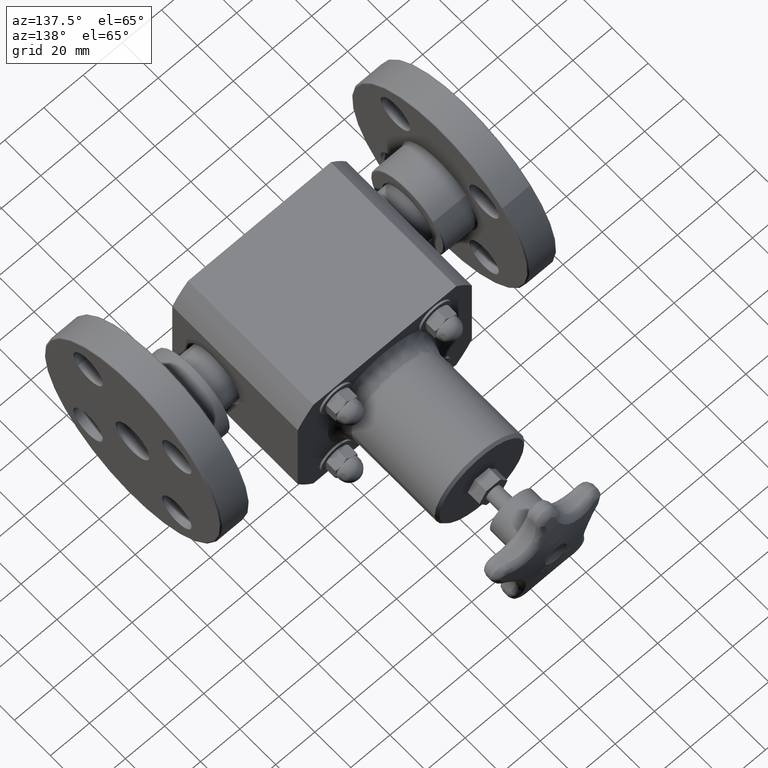
[diagram: clean part render]
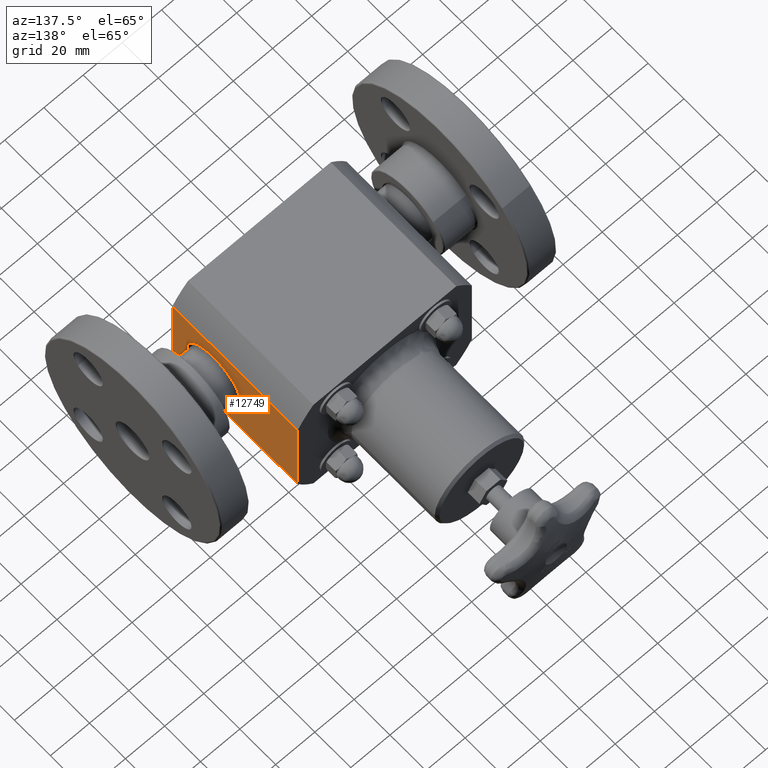
[diagram: same view with one face highlighted and labeled with its STEP entity id]
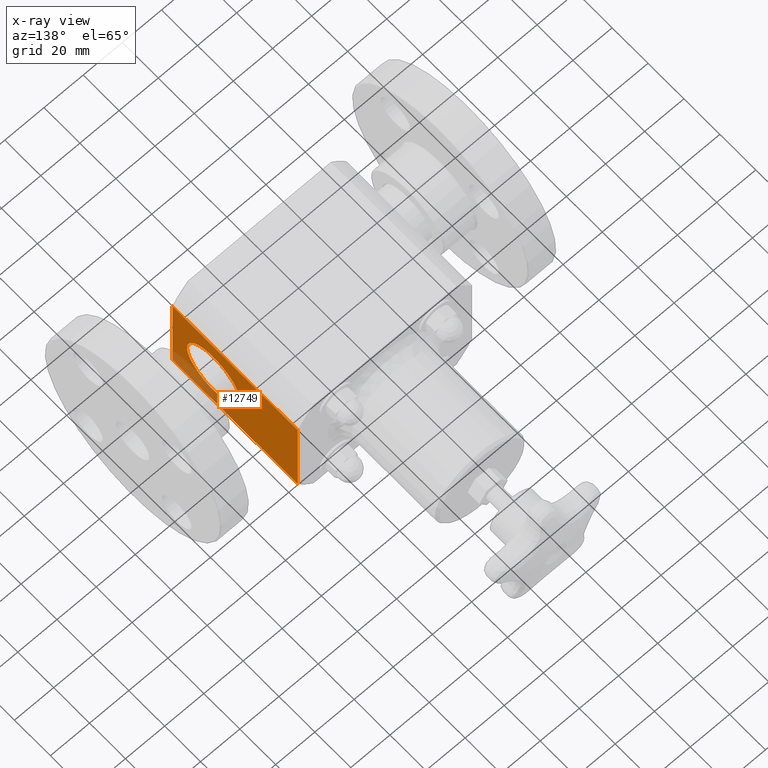
[diagram: x-ray of the same camera — body ghosted, the highlighted face saturated]
A machine part, auxiliary view. The second image highlights one B-rep face of the part: STEP entity #12749.
The next image is the same camera in x-ray: the body ghosted, the highlighted face saturated — about 10% of this face is hidden behind the body in this view.
In plain terms, the highlighted planar face has unit normal (1, 0, 0).
Its self-contained STEP definition (entity closure, byte-faithful):
#12513=CARTESIAN_POINT('',(1.750000000000000,2.750000000000000,0.942155109310565));
#12514=VERTEX_POINT('',#12513);
#12522=CARTESIAN_POINT('',(1.750000000000000,2.750000000000000,-0.942155109310564));
#12523=VERTEX_POINT('',#12522);
#12524=CARTESIAN_POINT('',(1.750000000000001,2.750000000000000,-0.942155109310564));
#12525=DIRECTION('',(0.0,0.0,1.0));
#12526=VECTOR('',#12525,1.884310218621130);
#12527=LINE('',#12524,#12526);
#12528=EDGE_CURVE('',#12523,#12514,#12527,.T.);
#12692=CARTESIAN_POINT('',(1.750000000000000,1.479000000000000,7.090705E-017));
#12693=VERTEX_POINT('',#12692);
#12694=CARTESIAN_POINT('',(1.750000000000000,0.900000000000000,0.0));
#12695=DIRECTION('',(1.0,0.0,0.0));
#12696=DIRECTION('',(0.0,-1.0,0.0));
#12697=AXIS2_PLACEMENT_3D('',#12694,#12695,#12696);
#12698=CIRCLE('',#12697,0.579000000000000);
#12699=EDGE_CURVE('',#12693,#12693,#12698,.T.);
#12716=CARTESIAN_POINT('',(1.750000000000000,1.011657E-044,-0.942155109310564));
#12717=DIRECTION('',(1.0,0.0,0.0));
#12718=DIRECTION('',(0.0,0.0,-1.0));
#12719=AXIS2_PLACEMENT_3D('',#12716,#12717,#12718);
#12720=PLANE('',#12719);
#12721=CARTESIAN_POINT('',(1.750000000000000,1.011657E-044,0.942155109310564));
#12722=VERTEX_POINT('',#12721);
#12723=CARTESIAN_POINT('',(1.750000000000000,1.011657E-044,0.942155109310564));
#12724=DIRECTION('',(0.0,1.0,0.0));
#12725=VECTOR('',#12724,2.750000000000000);
#12726=LINE('',#12723,#12725);
#12727=EDGE_CURVE('',#12722,#12514,#12726,.T.);
#12728=ORIENTED_EDGE('',*,*,#12727,.F.);
#12729=CARTESIAN_POINT('',(1.750000000000000,1.011657E-044,-0.942155109310564));
#12730=VERTEX_POINT('',#12729);
#12731=CARTESIAN_POINT('',(1.750000000000000,1.011657E-044,-0.942155109310564));
#12732=DIRECTION('',(0.0,0.0,1.0));
#12733=VECTOR('',#12732,1.884310218621128);
#12734=LINE('',#12731,#12733);
#12735=EDGE_CURVE('',#12730,#12722,#12734,.T.);
#12736=ORIENTED_EDGE('',*,*,#12735,.F.);
#12737=CARTESIAN_POINT('',(1.750000000000000,1.011657E-044,-0.942155109310564));
#12738=DIRECTION('',(0.0,1.0,0.0));
#12739=VECTOR('',#12738,2.750000000000000);
#12740=LINE('',#12737,#12739);
#12741=EDGE_CURVE('',#12730,#12523,#12740,.T.);
#12742=ORIENTED_EDGE('',*,*,#12741,.T.);
#12743=ORIENTED_EDGE('',*,*,#12528,.T.);
#12744=EDGE_LOOP('',(#12728,#12736,#12742,#12743));
#12745=FACE_OUTER_BOUND('',#12744,.T.);
#12746=ORIENTED_EDGE('',*,*,#12699,.F.);
#12747=EDGE_LOOP('',(#12746));
#12748=FACE_BOUND('',#12747,.T.);
#12749=ADVANCED_FACE('',(#12745,#12748),#12720,.T.);